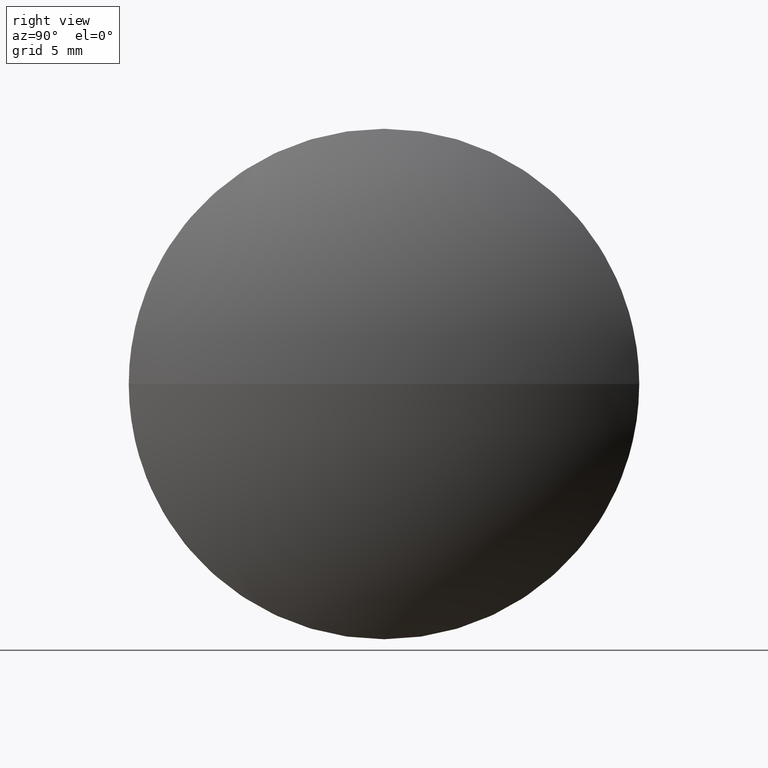
[diagram: clean part render]
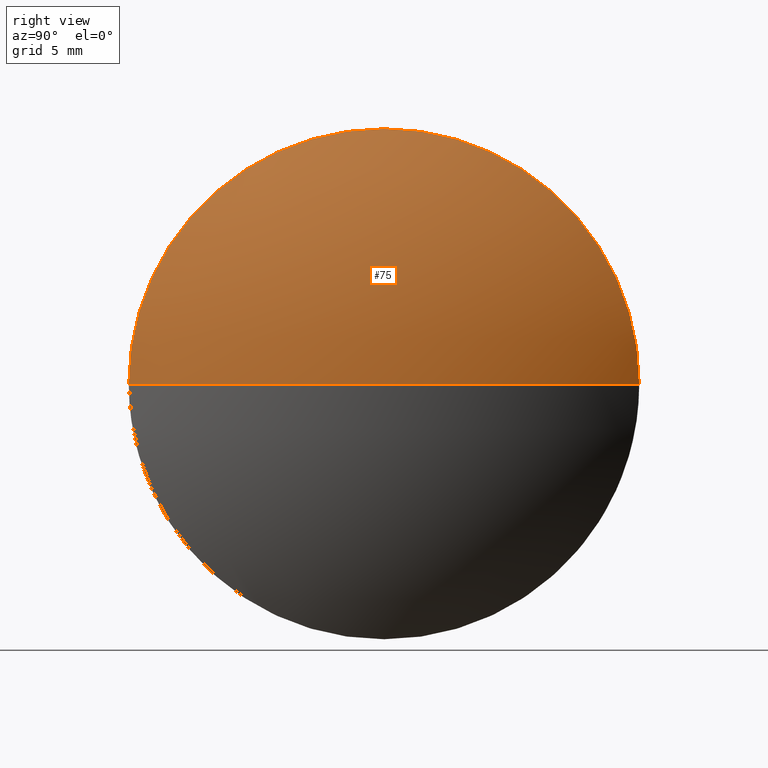
[diagram: same view with one face highlighted and labeled with its STEP entity id]
A machine part, right view. The second image highlights one B-rep face of the part: STEP entity #75.
In plain terms, the highlighted spherical surface has radius 22.9213 mm.
Its self-contained STEP definition (entity closure, byte-faithful):
#4 = ORIENTED_EDGE ( 'NONE', *, *, #59, .T. ) ;
#17 = DIRECTION ( 'NONE',  ( 0.0000000000000000000, 0.0000000000000000000, 1.000000000000000000 ) ) ;
#19 = AXIS2_PLACEMENT_3D ( 'NONE', #148, #121, #17 ) ;
#24 = FACE_OUTER_BOUND ( 'NONE', #98, .T. ) ;
#33 = CIRCLE ( 'NONE', #19, 12.70000000000001700 ) ;
#45 = AXIS2_PLACEMENT_3D ( 'NONE', #162, #179, #77 ) ;
#49 = VERTEX_POINT ( 'NONE', #160 ) ;
#55 = CIRCLE ( 'NONE', #166, 12.70000000000001700 ) ;
#56 = AXIS2_PLACEMENT_3D ( 'NONE', #65, #110, #159 ) ;
#58 = EDGE_CURVE ( 'NONE', #62, #94, #64, .T. ) ;
#59 = EDGE_CURVE ( 'NONE', #62, #49, #141, .T. ) ;
#62 = VERTEX_POINT ( 'NONE', #180 ) ;
#64 = CIRCLE ( 'NONE', #56, 22.92130208333331600 ) ;
#65 = CARTESIAN_POINT ( 'NONE',  ( 435.1355369558463100, 125.5256010425788700, 0.0000000000000000000 ) ) ;
#75 = ADVANCED_FACE ( 'NONE', ( #24 ), #145, .T. ) ;
#77 = DIRECTION ( 'NONE',  ( 0.0000000000000000000, 1.000000000000000000, 0.0000000000000000000 ) ) ;
#94 = VERTEX_POINT ( 'NONE', #111 ) ;
#98 = EDGE_LOOP ( 'NONE', ( #175, #4, #176, #109 ) ) ;
#99 = DIRECTION ( 'NONE',  ( 0.0000000000000000000, 0.0000000000000000000, 1.000000000000000000 ) ) ;
#104 = EDGE_CURVE ( 'NONE', #124, #49, #33, .T. ) ;
#109 = ORIENTED_EDGE ( 'NONE', *, *, #126, .F. ) ;
#110 = DIRECTION ( 'NONE',  ( 0.0000000000000000000, 1.224646799147353200E-016, -1.000000000000000000 ) ) ;
#111 = CARTESIAN_POINT ( 'NONE',  ( 454.2168390391796000, 112.8256010425788500, -1.555301434917140200E-015 ) ) ;
#117 = CARTESIAN_POINT ( 'NONE',  ( 454.2168390391796000, 125.5256010425788700, 0.0000000000000000000 ) ) ;
#121 = DIRECTION ( 'NONE',  ( -1.000000000000000000, -0.0000000000000000000, -0.0000000000000000000 ) ) ;
#122 = DIRECTION ( 'NONE',  ( -1.000000000000000000, -0.0000000000000000000, -0.0000000000000000000 ) ) ;
#124 = VERTEX_POINT ( 'NONE', #134 ) ;
#125 = AXIS2_PLACEMENT_3D ( 'NONE', #129, #128, #181 ) ;
#126 = EDGE_CURVE ( 'NONE', #94, #124, #55, .T. ) ;
#128 = DIRECTION ( 'NONE',  ( -0.0000000000000000000, 0.0000000000000000000, 1.000000000000000000 ) ) ;
#129 = CARTESIAN_POINT ( 'NONE',  ( 435.1355369558463100, 125.5256010425788700, 0.0000000000000000000 ) ) ;
#134 = CARTESIAN_POINT ( 'NONE',  ( 454.2168390391796000, 125.5256010425788700, 12.70000000000001700 ) ) ;
#141 = CIRCLE ( 'NONE', #125, 22.92130208333331600 ) ;
#145 = SPHERICAL_SURFACE ( 'NONE', #45, 22.92130208333331600 ) ;
#148 = CARTESIAN_POINT ( 'NONE',  ( 454.2168390391796000, 125.5256010425788700, 0.0000000000000000000 ) ) ;
#159 = DIRECTION ( 'NONE',  ( 0.0000000000000000000, 1.000000000000000000, 1.224646799147353200E-016 ) ) ;
#160 = CARTESIAN_POINT ( 'NONE',  ( 454.2168390391796000, 138.2256010425788900, 0.0000000000000000000 ) ) ;
#162 = CARTESIAN_POINT ( 'NONE',  ( 435.1355369558463100, 125.5256010425788700, 0.0000000000000000000 ) ) ;
#166 = AXIS2_PLACEMENT_3D ( 'NONE', #117, #122, #99 ) ;
#175 = ORIENTED_EDGE ( 'NONE', *, *, #58, .F. ) ;
#176 = ORIENTED_EDGE ( 'NONE', *, *, #104, .F. ) ;
#179 = DIRECTION ( 'NONE',  ( -0.0000000000000000000, 0.0000000000000000000, -1.000000000000000000 ) ) ;
#180 = CARTESIAN_POINT ( 'NONE',  ( 458.0568390391795800, 125.5256010425788700, 0.0000000000000000000 ) ) ;
#181 = DIRECTION ( 'NONE',  ( 1.000000000000000000, 0.0000000000000000000, 0.0000000000000000000 ) ) ;